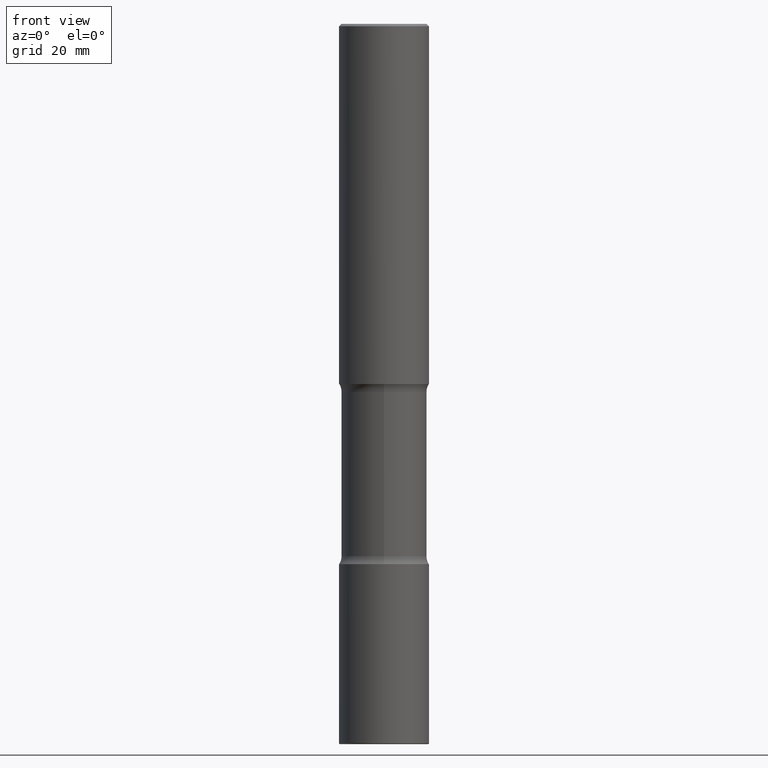
[diagram: clean part render]
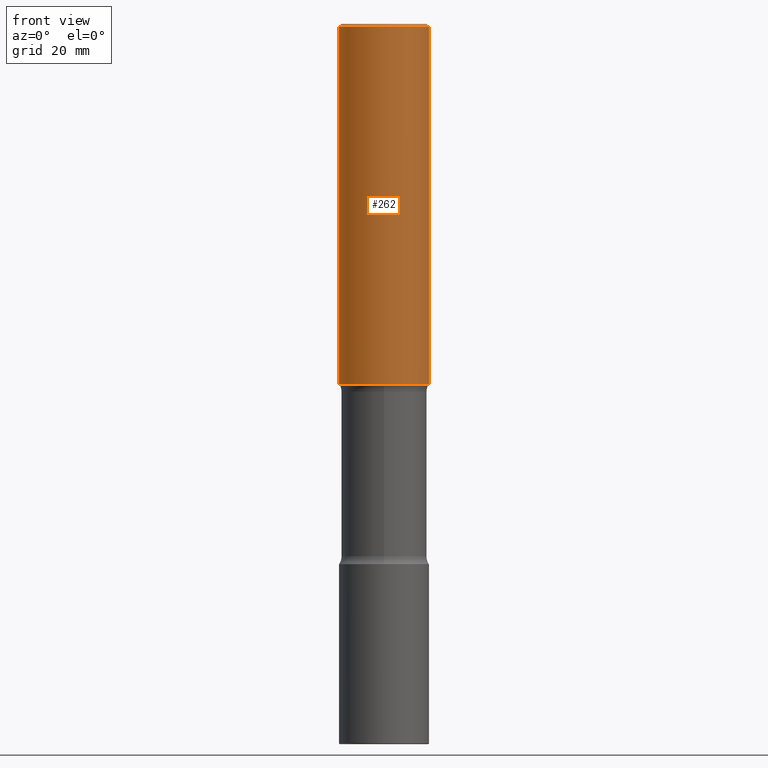
[diagram: same view with one face highlighted and labeled with its STEP entity id]
A machine part, front view. The second image highlights one B-rep face of the part: STEP entity #262.
In plain terms, the highlighted cylindrical surface (partial cylindrical patch) has radius 9.525 mm, axis along (-0, 0, 1).
Its self-contained STEP definition (entity closure, byte-faithful):
#4 = DIRECTION ( 'NONE',  ( -2.445468806185136597E-29, 3.491481338843145583E-15, 1.000000000000000000 ) ) ;
#7 = CIRCLE ( 'NONE', #439, 0.3750000000000001110 ) ;
#11 = DIRECTION ( 'NONE',  ( 1.000000000000000000, -6.982962677686265922E-15, 0.000000000000000000 ) ) ;
#12 = CARTESIAN_POINT ( 'NONE',  ( 7.336406418555407548E-29, -1.047444401652943320E-14, -2.999999999999999112 ) ) ;
#22 = ORIENTED_EDGE ( 'NONE', *, *, #58, .F. ) ;
#50 = EDGE_LOOP ( 'NONE', ( #336, #451, #542, #22 ) ) ;
#58 = EDGE_CURVE ( 'NONE', #76, #186, #7, .T. ) ;
#76 = VERTEX_POINT ( 'NONE', #106 ) ;
#80 = CARTESIAN_POINT ( 'NONE',  ( -0.3750000000000002220, 2.664535259100377275E-15, -1.844600658845590719E-29 ) ) ;
#99 = FACE_OUTER_BOUND ( 'NONE', #50, .T. ) ;
#100 = CARTESIAN_POINT ( 'NONE',  ( 0.000000000000000000, 0.000000000000000000, 0.000000000000000000 ) ) ;
#105 = DIRECTION ( 'NONE',  ( 1.000000000000000000, -6.982962677686266711E-15, 4.876176775795935793E-29 ) ) ;
#106 = CARTESIAN_POINT ( 'NONE',  ( -0.3750000000000001110, 2.548781377355487113E-15, -0.02000000000000006981 ) ) ;
#111 = DIRECTION ( 'NONE',  ( -2.445468806185136597E-29, 3.491481338843145583E-15, 1.000000000000000000 ) ) ;
#172 = VERTEX_POINT ( 'NONE', #319 ) ;
#173 = EDGE_CURVE ( 'NONE', #507, #172, #369, .T. ) ;
#182 = LINE ( 'NONE', #270, #353 ) ;
#186 = VERTEX_POINT ( 'NONE', #284 ) ;
#194 = AXIS2_PLACEMENT_3D ( 'NONE', #100, #111, #105 ) ;
#209 = LINE ( 'NONE', #80, #311 ) ;
#223 = DIRECTION ( 'NONE',  ( -2.445468806185136877E-29, 3.491481338843145188E-15, 1.000000000000000000 ) ) ;
#232 = CARTESIAN_POINT ( 'NONE',  ( 4.890937612370289799E-31, -6.982962677686315028E-17, -0.02000000000000006981 ) ) ;
#262 = ADVANCED_FACE ( 'NONE', ( #99 ), #495, .T. ) ;
#270 = CARTESIAN_POINT ( 'NONE',  ( 0.3750000000000002220, -2.618611004132351594E-15, 1.828566290923477043E-29 ) ) ;
#279 = AXIS2_PLACEMENT_3D ( 'NONE', #12, #372, #411 ) ;
#284 = CARTESIAN_POINT ( 'NONE',  ( 0.3750000000000001110, -2.642516375941188423E-15, -0.02000000000000006981 ) ) ;
#311 = VECTOR ( 'NONE', #426, 39.37007874015748143 ) ;
#317 = EDGE_CURVE ( 'NONE', #507, #76, #209, .T. ) ;
#319 = CARTESIAN_POINT ( 'NONE',  ( 0.3750000000000003886, -1.309305502066178637E-14, -2.999999999999999112 ) ) ;
#336 = ORIENTED_EDGE ( 'NONE', *, *, #317, .F. ) ;
#353 = VECTOR ( 'NONE', #223, 39.37007874015748143 ) ;
#369 = CIRCLE ( 'NONE', #279, 0.3750000000000003886 ) ;
#372 = DIRECTION ( 'NONE',  ( -2.445468806185136597E-29, 3.491481338843145583E-15, 1.000000000000000000 ) ) ;
#397 = CARTESIAN_POINT ( 'NONE',  ( -0.3750000000000003886, -2.607601562552767029E-15, -2.999999999999999112 ) ) ;
#411 = DIRECTION ( 'NONE',  ( 1.000000000000000000, -6.982962677686265922E-15, 0.000000000000000000 ) ) ;
#426 = DIRECTION ( 'NONE',  ( -2.445468806185136877E-29, 3.491481338843145188E-15, 1.000000000000000000 ) ) ;
#439 = AXIS2_PLACEMENT_3D ( 'NONE', #232, #4, #11 ) ;
#451 = ORIENTED_EDGE ( 'NONE', *, *, #173, .T. ) ;
#495 = CYLINDRICAL_SURFACE ( 'NONE', #194, 0.3750000000000002220 ) ;
#507 = VERTEX_POINT ( 'NONE', #397 ) ;
#516 = EDGE_CURVE ( 'NONE', #172, #186, #182, .T. ) ;
#542 = ORIENTED_EDGE ( 'NONE', *, *, #516, .T. ) ;